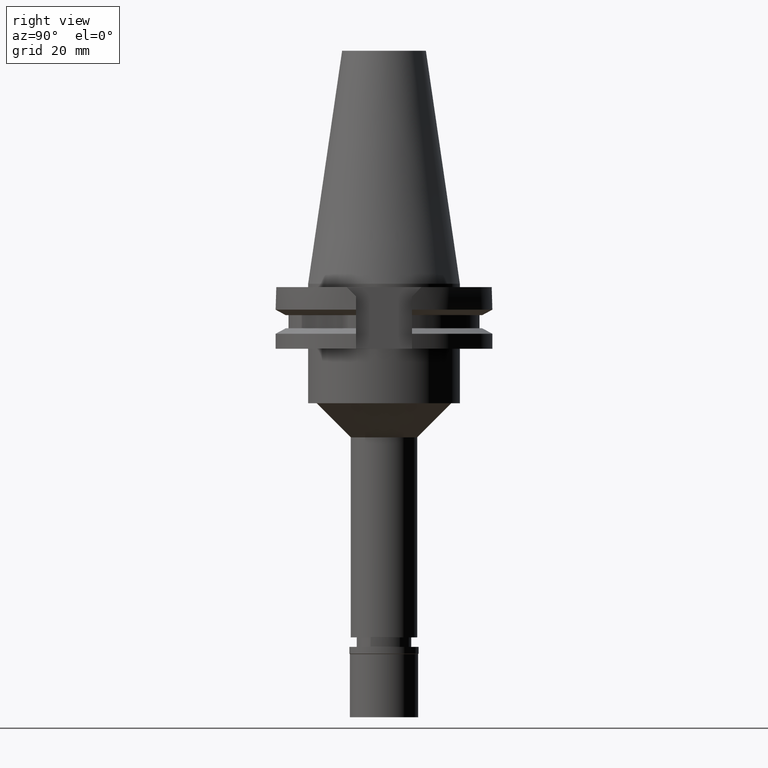
[diagram: clean part render]
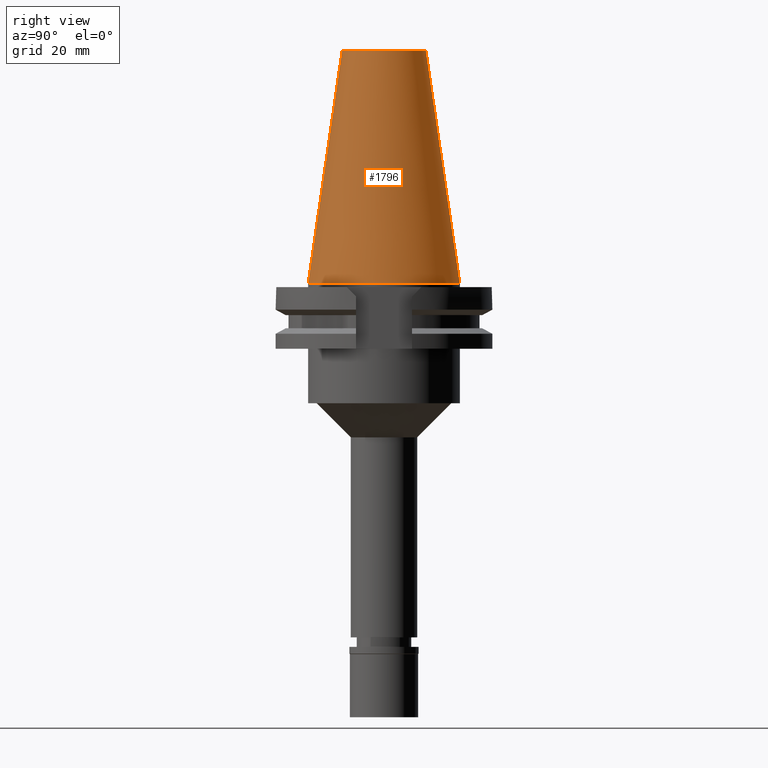
[diagram: same view with one face highlighted and labeled with its STEP entity id]
A machine part, right view. The second image highlights one B-rep face of the part: STEP entity #1796.
In plain terms, the highlighted conical surface has half-angle 8.297 deg.
Its self-contained STEP definition (entity closure, byte-faithful):
#81 = VERTEX_POINT ( 'NONE', #167 ) ;
#167 = CARTESIAN_POINT ( 'NONE',  ( 0.0000000000000000000, -22.22500000000000142, -1.847411112975999717E-13 ) ) ;
#299 = CARTESIAN_POINT ( 'NONE',  ( 0.0000000000000000000, 12.27186888070000137, 68.25000000000000000 ) ) ;
#302 = FACE_OUTER_BOUND ( 'NONE', #852, .T. ) ;
#429 = CIRCLE ( 'NONE', #2967, 12.27186888070000137 ) ;
#440 = DIRECTION ( 'NONE',  ( 0.0000000000000000000, 1.000000000000000000, 0.0000000000000000000 ) ) ;
#602 = CARTESIAN_POINT ( 'NONE',  ( 0.0000000000000000000, -12.27186888070000137, 68.25000000000000000 ) ) ;
#667 = LINE ( 'NONE', #2185, #2528 ) ;
#687 = AXIS2_PLACEMENT_3D ( 'NONE', #3323, #2048, #440 ) ;
#777 = DIRECTION ( 'NONE',  ( 0.0000000000000000000, -1.000000000000000000, 0.0000000000000000000 ) ) ;
#835 = VECTOR ( 'NONE', #1826, 1000.000000000000114 ) ;
#852 = EDGE_LOOP ( 'NONE', ( #2248, #2943, #2164, #1331 ) ) ;
#906 = EDGE_CURVE ( 'NONE', #2816, #81, #667, .T. ) ;
#907 = DIRECTION ( 'NONE',  ( 0.0000000000000000000, -0.1443069799456937474, -0.9895329683941577192 ) ) ;
#1209 = EDGE_CURVE ( 'NONE', #1571, #81, #1825, .T. ) ;
#1327 = CARTESIAN_POINT ( 'NONE',  ( 0.0000000000000000000, 0.0000000000000000000, 34.12500000000000000 ) ) ;
#1331 = ORIENTED_EDGE ( 'NONE', *, *, #3139, .F. ) ;
#1429 = EDGE_CURVE ( 'NONE', #2052, #2816, #429, .T. ) ;
#1571 = VERTEX_POINT ( 'NONE', #2283 ) ;
#1599 = DIRECTION ( 'NONE',  ( 0.0000000000000000000, 0.0000000000000000000, -1.000000000000000000 ) ) ;
#1796 = ADVANCED_FACE ( 'NONE', ( #302 ), #3329, .T. ) ;
#1825 = CIRCLE ( 'NONE', #687, 22.22500000000000142 ) ;
#1826 = DIRECTION ( 'NONE',  ( 0.0000000000000000000, 0.1443069799456937474, -0.9895329683941577192 ) ) ;
#1873 = AXIS2_PLACEMENT_3D ( 'NONE', #1327, #1599, #777 ) ;
#1968 = CARTESIAN_POINT ( 'NONE',  ( 0.0000000000000000000, 12.27186888070000137, 68.25000000000000000 ) ) ;
#2048 = DIRECTION ( 'NONE',  ( 0.0000000000000000000, 0.0000000000000000000, -1.000000000000000000 ) ) ;
#2052 = VERTEX_POINT ( 'NONE', #1968 ) ;
#2164 = ORIENTED_EDGE ( 'NONE', *, *, #1209, .F. ) ;
#2185 = CARTESIAN_POINT ( 'NONE',  ( 0.0000000000000000000, -12.27186888070000137, 68.25000000000000000 ) ) ;
#2215 = CARTESIAN_POINT ( 'NONE',  ( 0.0000000000000000000, 0.0000000000000000000, 68.25000000000000000 ) ) ;
#2248 = ORIENTED_EDGE ( 'NONE', *, *, #1429, .T. ) ;
#2283 = CARTESIAN_POINT ( 'NONE',  ( 0.0000000000000000000, 22.22500000000000142, -1.847411112975999717E-13 ) ) ;
#2528 = VECTOR ( 'NONE', #907, 1000.000000000000114 ) ;
#2677 = DIRECTION ( 'NONE',  ( 0.0000000000000000000, 0.0000000000000000000, -1.000000000000000000 ) ) ;
#2816 = VERTEX_POINT ( 'NONE', #602 ) ;
#2839 = LINE ( 'NONE', #299, #835 ) ;
#2943 = ORIENTED_EDGE ( 'NONE', *, *, #906, .T. ) ;
#2956 = DIRECTION ( 'NONE',  ( 0.0000000000000000000, 1.000000000000000000, 0.0000000000000000000 ) ) ;
#2967 = AXIS2_PLACEMENT_3D ( 'NONE', #2215, #2677, #2956 ) ;
#3139 = EDGE_CURVE ( 'NONE', #2052, #1571, #2839, .T. ) ;
#3323 = CARTESIAN_POINT ( 'NONE',  ( 0.0000000000000000000, 0.0000000000000000000, -3.126388037344000570E-13 ) ) ;
#3329 = CONICAL_SURFACE ( 'NONE', #1873, 17.24843444035000317, 0.1448125860318199565 ) ;